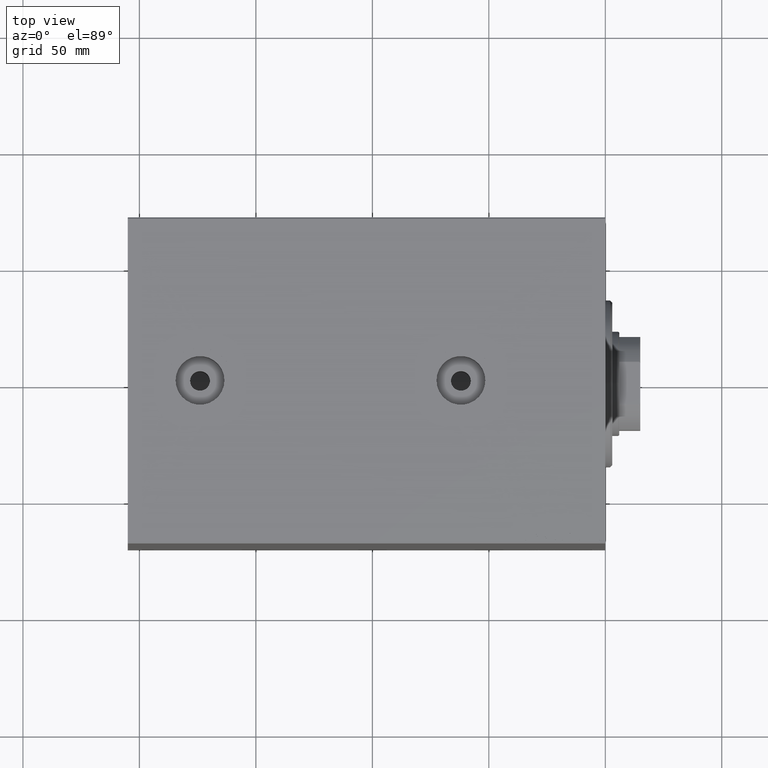
[diagram: clean part render]
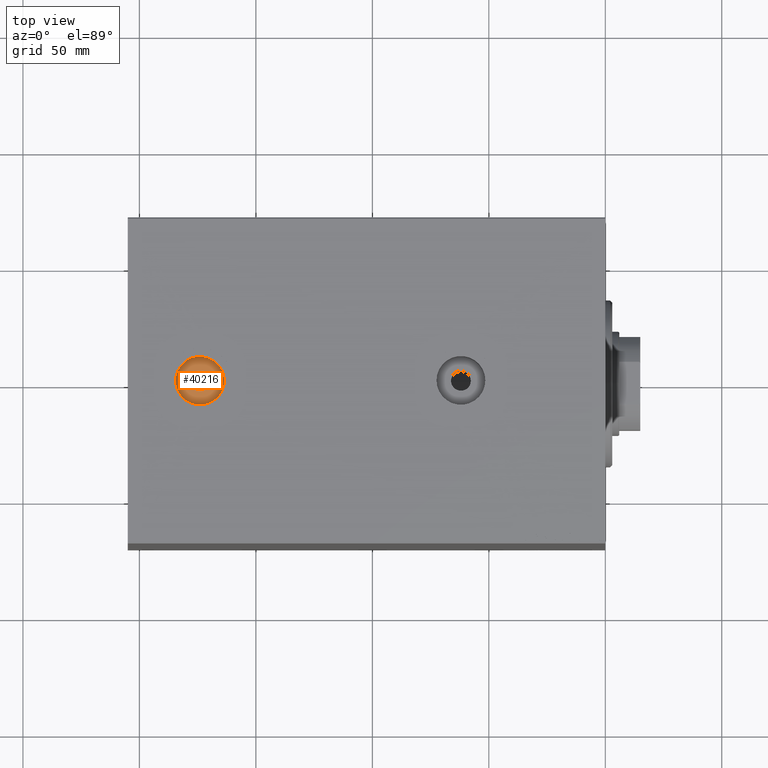
[diagram: same view with one face highlighted and labeled with its STEP entity id]
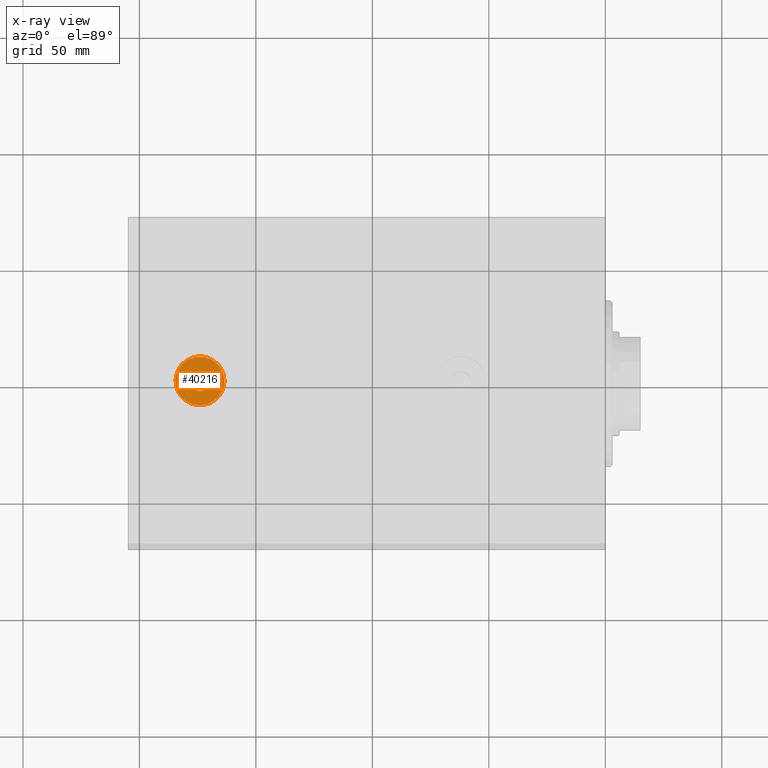
[diagram: x-ray of the same camera — body ghosted, the highlighted face saturated]
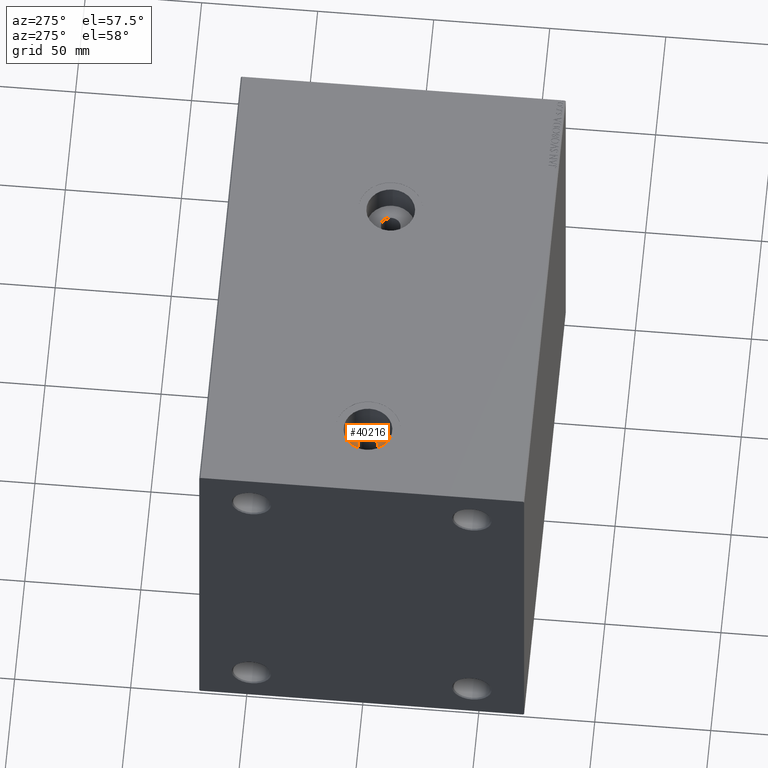
[diagram: same view with one face highlighted and labeled with its STEP entity id]
A machine part, top view. The second image highlights one B-rep face of the part: STEP entity #40216.
The next image is the same camera in x-ray: the body ghosted, the highlighted face saturated — about 0% of this face is hidden behind the body in this view.
A second angle (auxiliary view) of the same face is appended — the face is thin or edge-on in the first view.
In plain terms, the highlighted planar face has unit normal (-0, 0, 1).
Its self-contained STEP definition (entity closure, byte-faithful):
#1890 = DIRECTION ( 'NONE',  ( 0.000000000000000000, 0.000000000000000000, -1.000000000000000000 ) ) ;
#2516 = DIRECTION ( 'NONE',  ( 0.000000000000000000, 0.000000000000000000, -1.000000000000000000 ) ) ;
#2744 = ORIENTED_EDGE ( 'NONE', *, *, #37930, .F. ) ;
#2814 = CARTESIAN_POINT ( 'NONE',  ( 174.0000000000000000, -2.991183127869684016E-14, -72.00000000000002842 ) ) ;
#3247 = AXIS2_PLACEMENT_3D ( 'NONE', #38659, #38419, #17380 ) ;
#3385 = CARTESIAN_POINT ( 'NONE',  ( 174.0000000000000000, -2.991183127869684016E-14, -72.00000000000002842 ) ) ;
#6489 = CARTESIAN_POINT ( 'NONE',  ( 0.000000000000000000, 0.000000000000000000, -72.00000000000002842 ) ) ;
#9198 = ORIENTED_EDGE ( 'NONE', *, *, #43924, .T. ) ;
#10227 = ORIENTED_EDGE ( 'NONE', *, *, #23115, .T. ) ;
#10231 = FACE_BOUND ( 'NONE', #28849, .T. ) ;
#10641 = DIRECTION ( 'NONE',  ( 0.000000000000000000, 0.000000000000000000, -1.000000000000000000 ) ) ;
#11345 = VERTEX_POINT ( 'NONE', #38137 ) ;
#12588 = DIRECTION ( 'NONE',  ( 0.000000000000000000, 0.000000000000000000, -1.000000000000000000 ) ) ;
#14119 = CARTESIAN_POINT ( 'NONE',  ( 178.2500000000000000, -2.939135638905921578E-14, -72.00000000000002842 ) ) ;
#15451 = EDGE_LOOP ( 'NONE', ( #10227, #9198 ) ) ;
#16756 = DIRECTION ( 'NONE',  ( -1.000000000000000000, 0.000000000000000000, -0.000000000000000000 ) ) ;
#17380 = DIRECTION ( 'NONE',  ( -1.000000000000000000, 0.000000000000000000, 0.000000000000000000 ) ) ;
#17401 = CIRCLE ( 'NONE', #3247, 10.47999999999998977 ) ;
#20016 = DIRECTION ( 'NONE',  ( -1.000000000000000000, 0.000000000000000000, 0.000000000000000000 ) ) ;
#20144 = AXIS2_PLACEMENT_3D ( 'NONE', #3385, #10641, #24859 ) ;
#21182 = FACE_OUTER_BOUND ( 'NONE', #15451, .T. ) ;
#23115 = EDGE_CURVE ( 'NONE', #42796, #11345, #17401, .T. ) ;
#24859 = DIRECTION ( 'NONE',  ( -1.000000000000000000, 0.000000000000000000, 0.000000000000000000 ) ) ;
#26724 = AXIS2_PLACEMENT_3D ( 'NONE', #6489, #2516, #16756 ) ;
#28443 = PLANE ( 'NONE',  #26724 ) ;
#28849 = EDGE_LOOP ( 'NONE', ( #2744, #33151 ) ) ;
#30408 = AXIS2_PLACEMENT_3D ( 'NONE', #2814, #1890, #42079 ) ;
#32810 = CIRCLE ( 'NONE', #20144, 4.250000000000003553 ) ;
#33151 = ORIENTED_EDGE ( 'NONE', *, *, #44309, .F. ) ;
#33834 = VERTEX_POINT ( 'NONE', #14119 ) ;
#35645 = CIRCLE ( 'NONE', #30408, 4.250000000000003553 ) ;
#37178 = VERTEX_POINT ( 'NONE', #39533 ) ;
#37840 = CARTESIAN_POINT ( 'NONE',  ( 163.5200000000000102, -2.991183127869684016E-14, -72.00000000000002842 ) ) ;
#37930 = EDGE_CURVE ( 'NONE', #37178, #33834, #35645, .T. ) ;
#38137 = CARTESIAN_POINT ( 'NONE',  ( 184.4799999999999898, -2.862840143319041783E-14, -72.00000000000002842 ) ) ;
#38419 = DIRECTION ( 'NONE',  ( 0.000000000000000000, 0.000000000000000000, -1.000000000000000000 ) ) ;
#38659 = CARTESIAN_POINT ( 'NONE',  ( 174.0000000000000000, -2.991183127869684016E-14, -72.00000000000002842 ) ) ;
#39533 = CARTESIAN_POINT ( 'NONE',  ( 169.7499999999999716, -2.991183127869684016E-14, -72.00000000000002842 ) ) ;
#40216 = ADVANCED_FACE ( 'NONE', ( #10231, #21182 ), #28443, .T. ) ;
#42079 = DIRECTION ( 'NONE',  ( -1.000000000000000000, 0.000000000000000000, 0.000000000000000000 ) ) ;
#42796 = VERTEX_POINT ( 'NONE', #37840 ) ;
#43924 = EDGE_CURVE ( 'NONE', #11345, #42796, #45542, .T. ) ;
#44038 = AXIS2_PLACEMENT_3D ( 'NONE', #44359, #12588, #20016 ) ;
#44309 = EDGE_CURVE ( 'NONE', #33834, #37178, #32810, .T. ) ;
#44359 = CARTESIAN_POINT ( 'NONE',  ( 174.0000000000000000, -2.991183127869684016E-14, -72.00000000000002842 ) ) ;
#45542 = CIRCLE ( 'NONE', #44038, 10.47999999999998977 ) ;